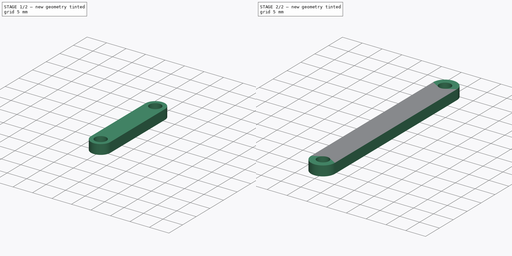
[diagram: build sequence overview — one tinted view per stage of 2, left to right]
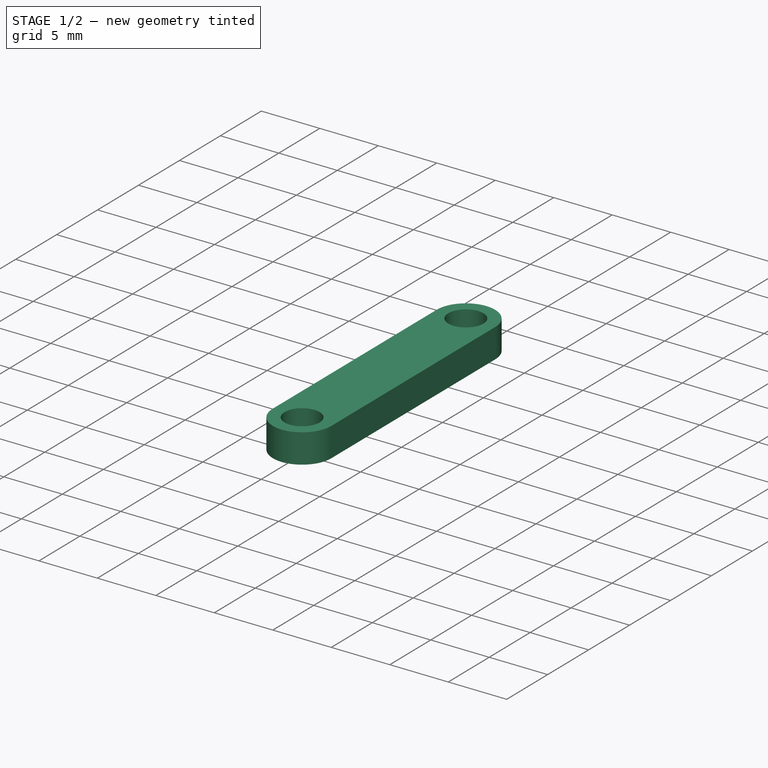
[diagram: stage 1 of 2 — iso view after this stage's code; geometry added in this stage tinted green]
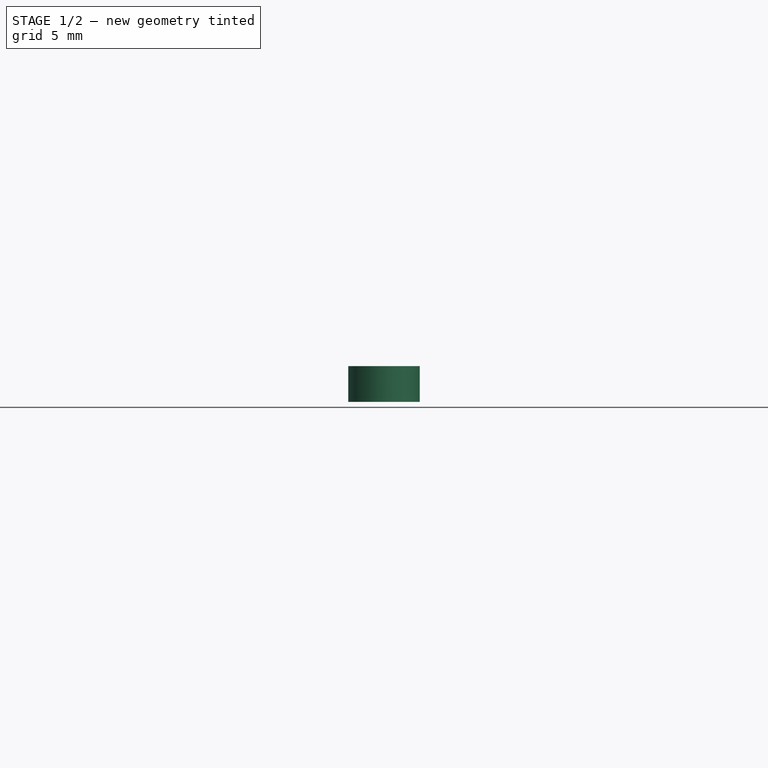
[diagram: stage 1 of 2 — front view after this stage's code; geometry added in this stage tinted green]
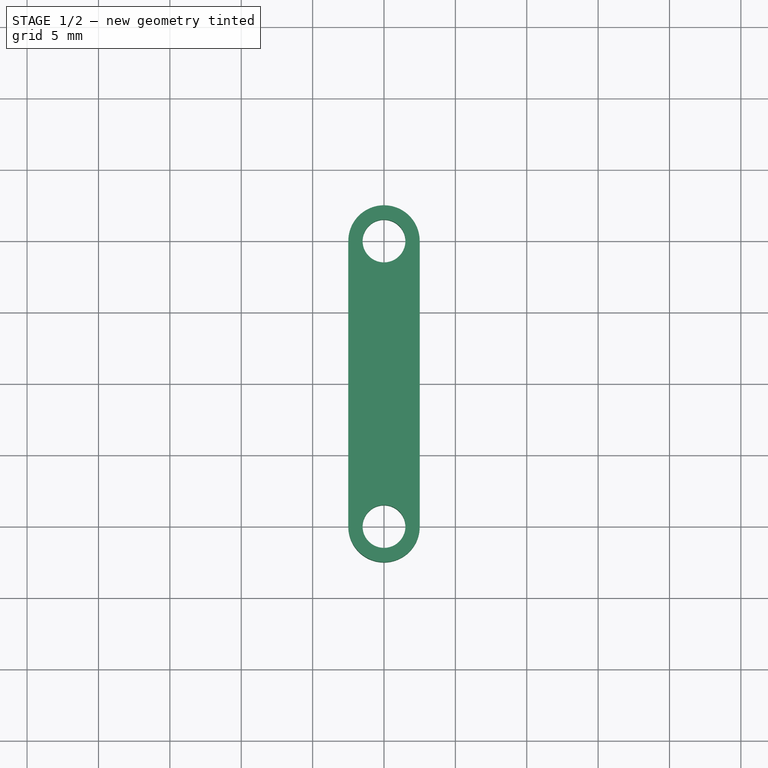
[diagram: stage 1 of 2 — top view after this stage's code; geometry added in this stage tinted green]
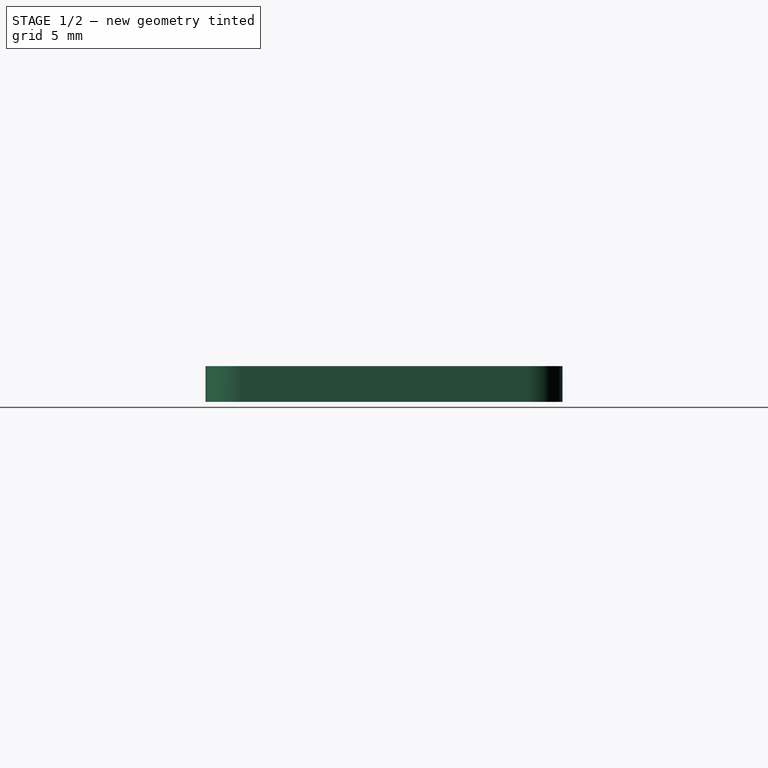
[diagram: stage 1 of 2 — right view after this stage's code; geometry added in this stage tinted green]
FCSTD DOCUMENT  (FreeCAD 0.19R22756 (Git))
Label: cable-clamps
License: All rights reserved
LicenseURL: http://en.wikipedia.org/wiki/All_rights_reserved
objects: Sketcher::SketchObject×2, PartDesign::Pad×2, PartDesign::Body×2
note: 8 computed .brp shape members not serialized (recipe doc carries the construction recipe); baked Part::Feature solids carry a one-line shape summary decoded from their .brp

FEATURE [PartDesign::Body] Body  label="44x6"
  Group = -> [Sketch,Pad]
  Origin = -> Origin
  Tip = -> Pad
FEATURE [Sketcher::SketchObject] Sketch001
  MapMode = 5
  Support = -> [XY_Plane001]
  expr: Constraints[15] = Constraints[13]
  expr: Constraints[7] = Constraints[4] / 2
  expr: Constraints[6] = Constraints[5] / 2
  sketch-geometry (6):
    g0: LineSegment StartX=-2.5 StartY=10 StartZ=0 EndX=-2.5 EndY=-10 EndZ=0
    g1: LineSegment StartX=2.5 StartY=-10 StartZ=0 EndX=2.5 EndY=10 EndZ=0
    g2: ArcOfCircle CenterX=0 CenterY=10 CenterZ=0 NormalX=0 NormalY=0 NormalZ=1 AngleXU=0 Radius=2.5 StartAngle=0 EndAngle=3.14159
    g3: ArcOfCircle CenterX=1e-16 CenterY=-10 CenterZ=0 NormalX=0 NormalY=0 NormalZ=1 AngleXU=0 Radius=2.5 StartAngle=3.14159 EndAngle=6.28319
    g4: Circle CenterX=0 CenterY=10 CenterZ=0 NormalX=0 NormalY=0 NormalZ=1 AngleXU=0 Radius=1.5
    g5: Circle CenterX=1e-16 CenterY=-10 CenterZ=0 NormalX=0 NormalY=0 NormalZ=1 AngleXU=0 Radius=1.5
  constraints (16):
    c: Vertical(g0)
    c: Vertical(g1)
    c: Equal(g0,g1)
    c: Horizontal(g1,g0)
    c: Distance(g1) = 20
    c: Distance(g1,g0) = 5
    c: DistanceX(g-2,g1) = 2.5
    c: DistanceY(g-1,g1) = 10
    c: Coincident(g2,g1)
    c: Tangent(g2,g0) = -1.5708
    c: Coincident(g3,g1)
    c: Tangent(g3,g0) = -1.5708
    c: Coincident(g4,g2)
    c: Diameter(g4) = 3
    c: Coincident(g5,g3)
    c: Diameter(g5) = 3
FEATURE [PartDesign::Pad] Pad001
  Direction = (1,1,1)
  Length = 2.5
  Length2 = 100
  Profile = -> Sketch001
  Type = 0
FEATURE [PartDesign::Body] Body001  label="20x5"
  Group = -> [Sketch001,Pad001]
  Origin = -> Origin001
  Tip = -> Pad001
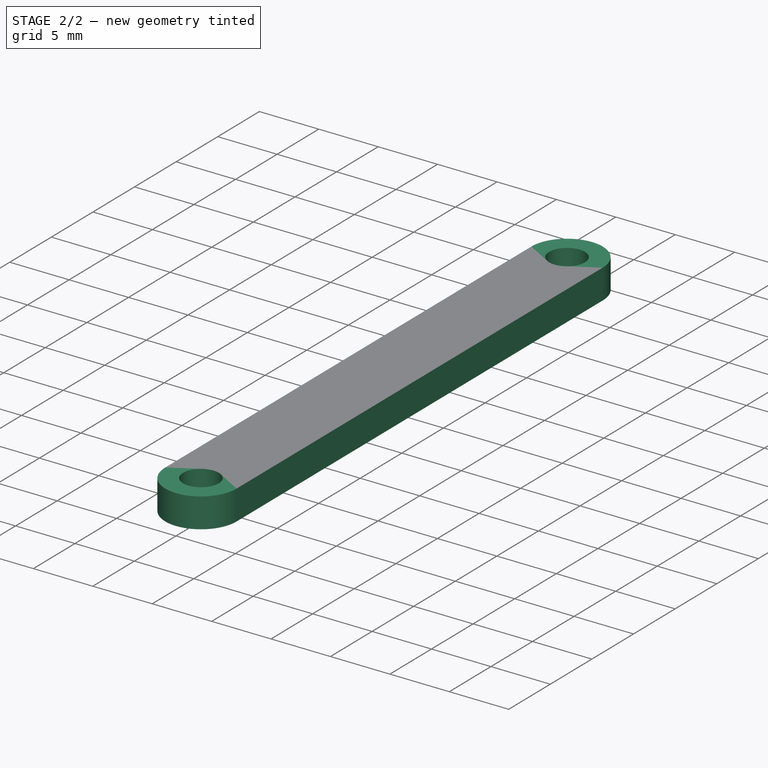
[diagram: stage 2 of 2 — iso view after this stage's code; geometry added in this stage tinted green]
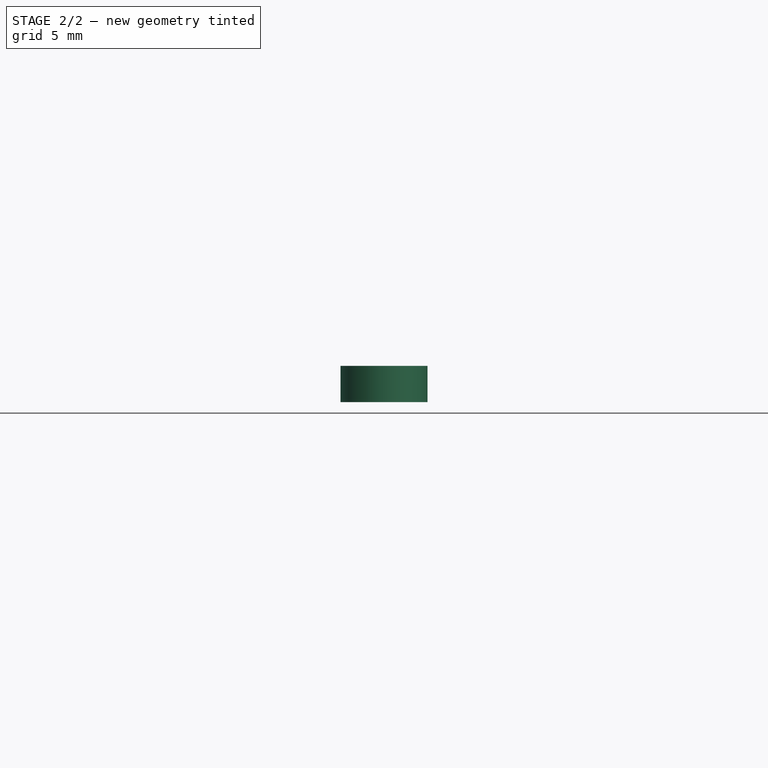
[diagram: stage 2 of 2 — front view after this stage's code; geometry added in this stage tinted green]
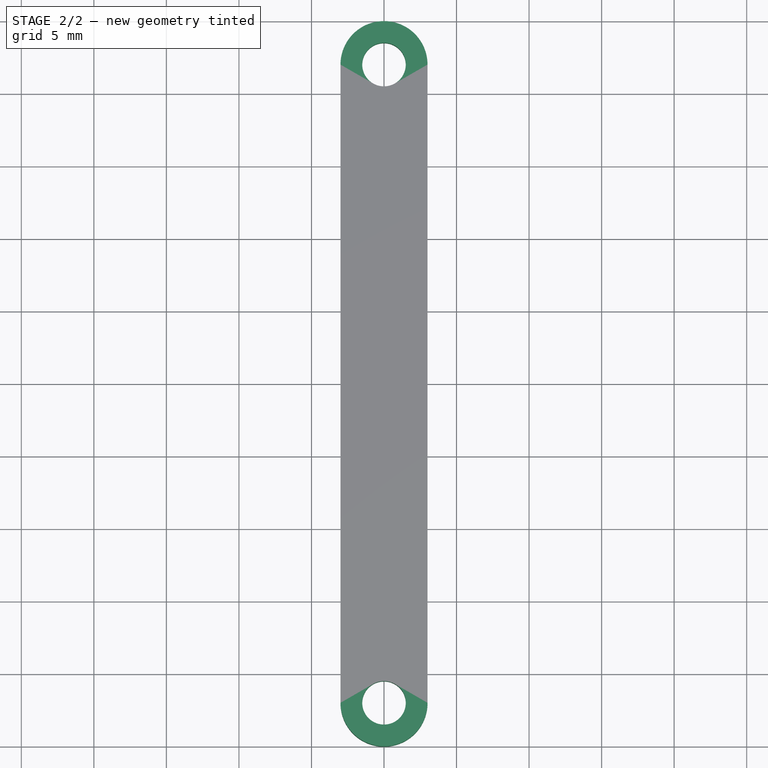
[diagram: stage 2 of 2 — top view after this stage's code; geometry added in this stage tinted green]
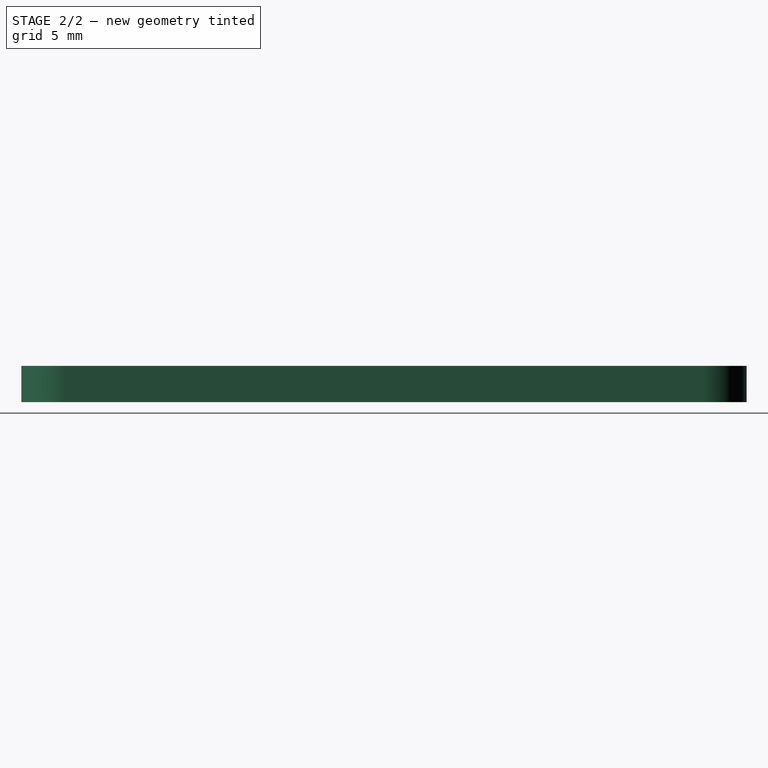
[diagram: stage 2 of 2 — right view after this stage's code; geometry added in this stage tinted green]
FEATURE [Sketcher::SketchObject] Sketch
  MapMode = 5
  Support = -> [XY_Plane]
  expr: Constraints[7] = Constraints[6] / 2
  expr: Constraints[5] = Constraints[3] / 2
  sketch-geometry (6):
    g0: LineSegment StartX=-3 StartY=22 StartZ=0 EndX=-3 EndY=-22 EndZ=0
    g1: LineSegment StartX=3 StartY=-22 StartZ=0 EndX=3 EndY=22 EndZ=0
    g2: ArcOfCircle CenterX=0 CenterY=22 CenterZ=0 NormalX=0 NormalY=0 NormalZ=1 AngleXU=0 Radius=3 StartAngle=1e-16 EndAngle=3.14159
    g3: ArcOfCircle CenterX=-3e-16 CenterY=-22 CenterZ=0 NormalX=0 NormalY=0 NormalZ=1 AngleXU=0 Radius=3 StartAngle=3.14159 EndAngle=6.28319
    g4: Circle CenterX=0 CenterY=22 CenterZ=0 NormalX=0 NormalY=0 NormalZ=1 AngleXU=0 Radius=1.5
    g5: Circle CenterX=-3e-16 CenterY=-22 CenterZ=0 NormalX=0 NormalY=0 NormalZ=1 AngleXU=0 Radius=1.5
  constraints (16):
    c: Vertical(g0)
    c: Vertical(g1)
    c: Equal(g0,g1)
    c: Distance(g1) = 44
    c: Horizontal(g0,g1)
    c: DistanceY(g-1,g1) = 22
    c: Distance(g0,g1) = 6
    c: DistanceX(g-2,g1) = 3
    c: Coincident(g2,g1)
    c: Tangent(g2,g0) = -1.5708
    c: Coincident(g3,g1)
    c: Tangent(g3,g0) = -1.5708
    c: Coincident(g4,g2)
    c: Diameter(g4) = 3
    c: Coincident(g5,g3)
    c: Diameter(g5) = 3
FEATURE [PartDesign::Pad] Pad
  Direction = (1,1,1)
  Length = 2.5
  Length2 = 100
  Profile = -> Sketch
  Type = 0
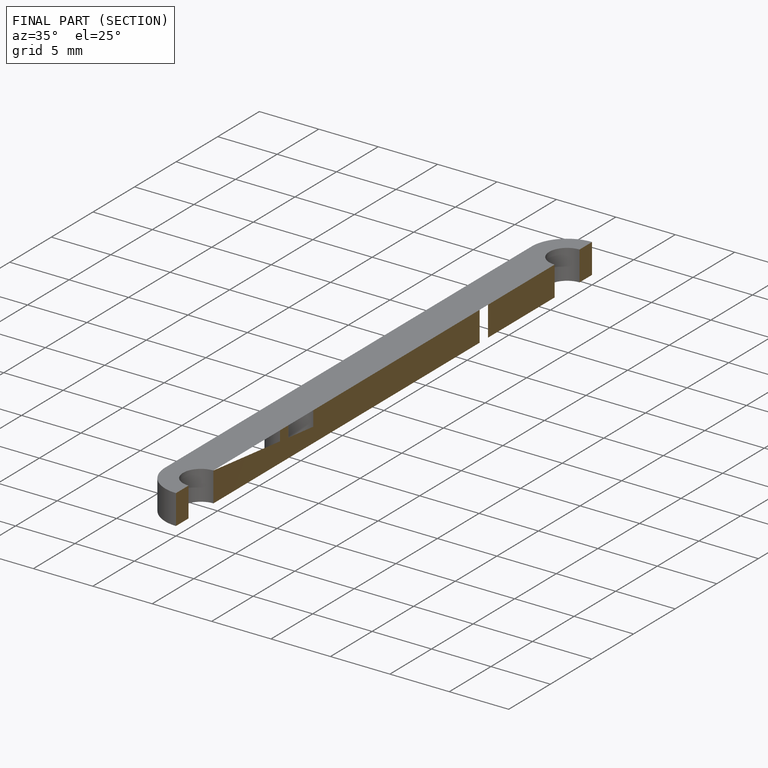
[diagram: finished part — half-section view (interior)]
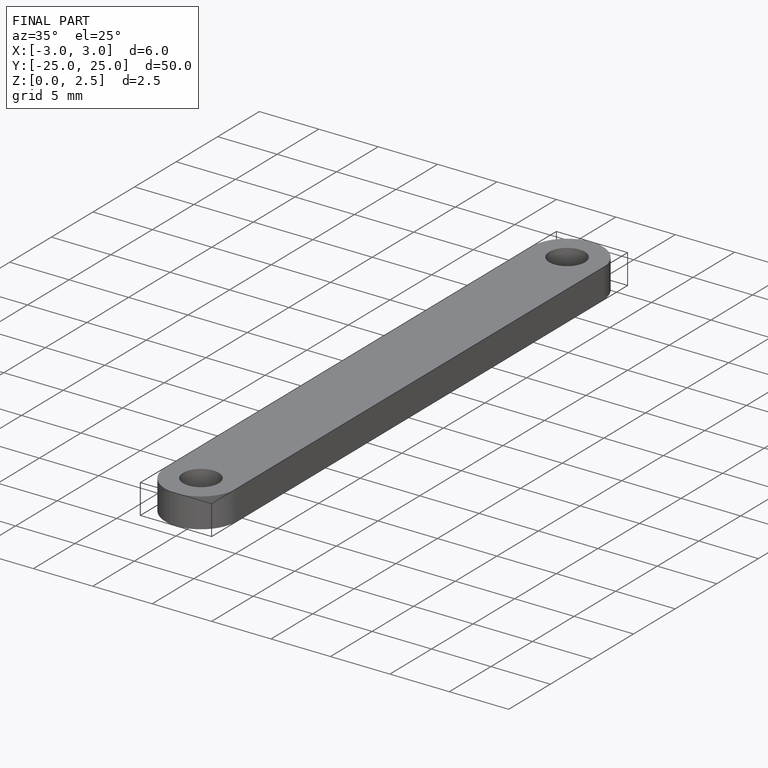
[diagram: finished part — iso view with bounding-box wireframe]
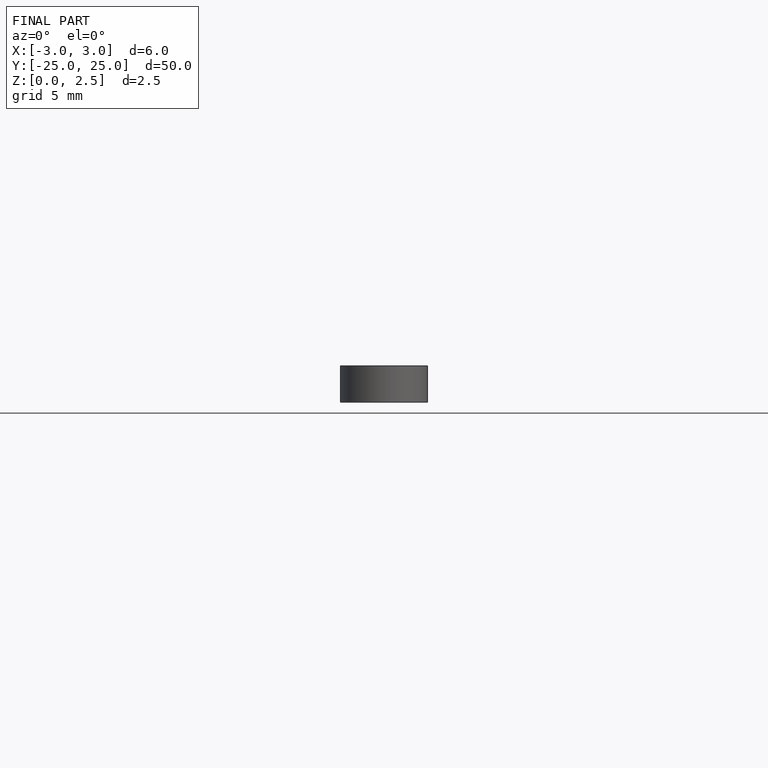
[diagram: finished part — front view with bounding-box wireframe]
